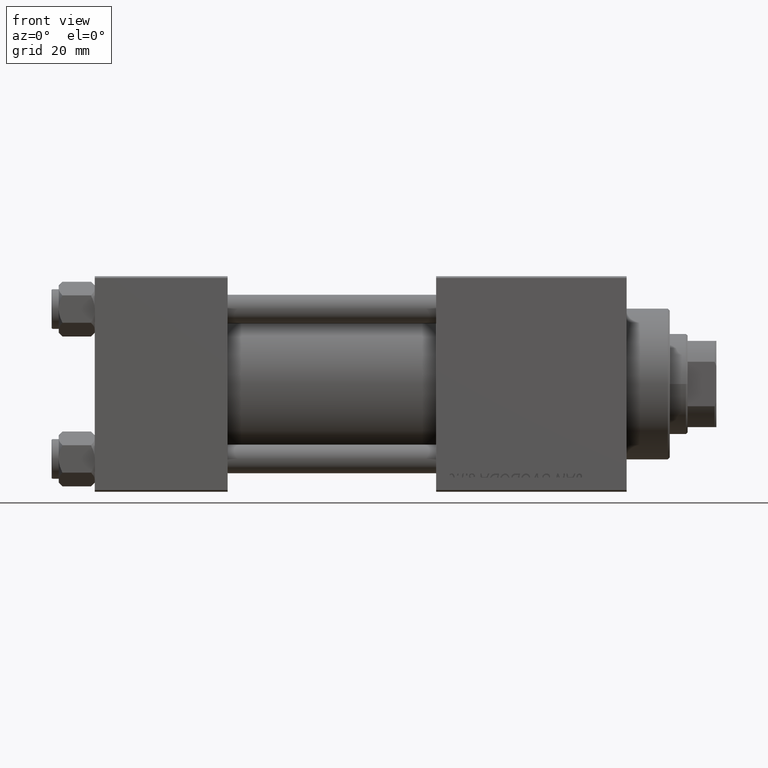
[diagram: clean part render]
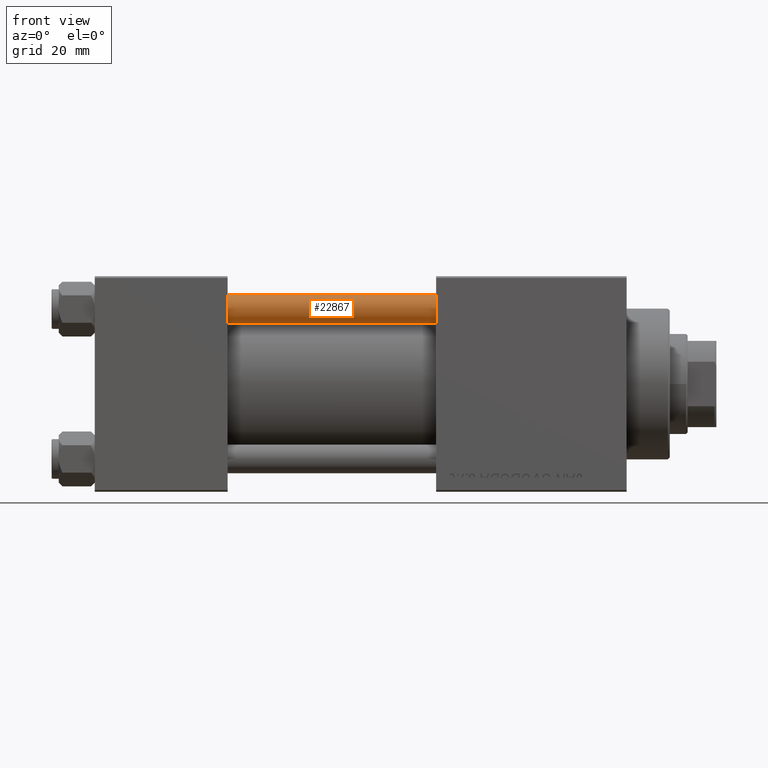
[diagram: same view with one face highlighted and labeled with its STEP entity id]
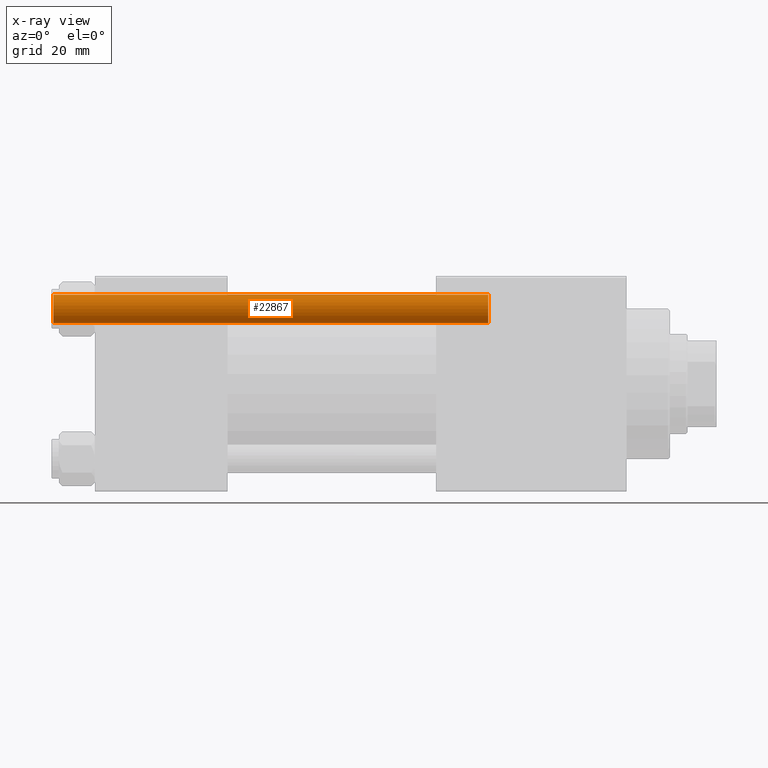
[diagram: x-ray of the same camera — body ghosted, the highlighted face saturated]
A machine part, front view. The second image highlights one B-rep face of the part: STEP entity #22867.
The next image is the same camera in x-ray: the body ghosted, the highlighted face saturated — about 0% of this face is hidden behind the body in this view.
In plain terms, the highlighted cylindrical surface (edge-blend (fillet) strip) has radius 4 mm, axis along (1, 0, -0).
Its self-contained STEP definition (entity closure, byte-faithful):
#1733 = CARTESIAN_POINT ( 'NONE',  ( 0.000000000000000000, 0.000000000000000000, 121.5000000000000426 ) ) ;
#2973 = CYLINDRICAL_SURFACE ( 'NONE', #47622, 4.000000000000000000 ) ;
#3284 = LINE ( 'NONE', #34675, #48078 ) ;
#3717 = CIRCLE ( 'NONE', #45297, 4.000000000000000000 ) ;
#7549 = FACE_OUTER_BOUND ( 'NONE', #42691, .T. ) ;
#9803 = DIRECTION ( 'NONE',  ( 1.000000000000000000, 0.000000000000000000, 0.000000000000000000 ) ) ;
#11381 = CIRCLE ( 'NONE', #40738, 4.000000000000000000 ) ;
#11616 = CARTESIAN_POINT ( 'NONE',  ( 0.000000000000000000, 0.000000000000000000, 122.0000000000000000 ) ) ;
#12462 = DIRECTION ( 'NONE',  ( -0.000000000000000000, -0.000000000000000000, -1.000000000000000000 ) ) ;
#13635 = CARTESIAN_POINT ( 'NONE',  ( 0.000000000000000000, 0.000000000000000000, 0.5000000000000559552 ) ) ;
#14953 = DIRECTION ( 'NONE',  ( -1.000000000000000000, 0.000000000000000000, 0.000000000000000000 ) ) ;
#16543 = DIRECTION ( 'NONE',  ( 0.000000000000000000, 0.000000000000000000, -1.000000000000000000 ) ) ;
#16808 = DIRECTION ( 'NONE',  ( 1.000000000000000000, 0.000000000000000000, 0.000000000000000000 ) ) ;
#20709 = CARTESIAN_POINT ( 'NONE',  ( -4.000000000000000000, 0.000000000000000000, 0.5000000000000559552 ) ) ;
#22236 = EDGE_CURVE ( 'NONE', #40920, #24268, #47433, .T. ) ;
#22867 = ADVANCED_FACE ( 'NONE', ( #7549 ), #2973, .T. ) ;
#23429 = CARTESIAN_POINT ( 'NONE',  ( 4.000000000000000000, 4.898587196589411843E-16, 121.5000000000000426 ) ) ;
#23718 = CARTESIAN_POINT ( 'NONE',  ( -4.000000000000000000, 0.000000000000000000, 122.0000000000000000 ) ) ;
#24268 = VERTEX_POINT ( 'NONE', #20709 ) ;
#24550 = VERTEX_POINT ( 'NONE', #45309 ) ;
#25403 = DIRECTION ( 'NONE',  ( -0.000000000000000000, -0.000000000000000000, 1.000000000000000000 ) ) ;
#26473 = EDGE_CURVE ( 'NONE', #40920, #37519, #3717, .T. ) ;
#27217 = DIRECTION ( 'NONE',  ( -0.000000000000000000, -0.000000000000000000, -1.000000000000000000 ) ) ;
#27448 = ORIENTED_EDGE ( 'NONE', *, *, #39358, .T. ) ;
#29759 = ORIENTED_EDGE ( 'NONE', *, *, #22236, .F. ) ;
#32431 = CARTESIAN_POINT ( 'NONE',  ( -4.000000000000000000, 0.000000000000000000, 121.5000000000000426 ) ) ;
#32955 = ORIENTED_EDGE ( 'NONE', *, *, #40346, .T. ) ;
#34223 = ORIENTED_EDGE ( 'NONE', *, *, #26473, .T. ) ;
#34675 = CARTESIAN_POINT ( 'NONE',  ( 4.000000000000000000, 4.898587196589411843E-16, 122.0000000000000000 ) ) ;
#37519 = VERTEX_POINT ( 'NONE', #23429 ) ;
#38623 = VECTOR ( 'NONE', #12462, 1000.000000000000000 ) ;
#39358 = EDGE_CURVE ( 'NONE', #24550, #24268, #11381, .T. ) ;
#40346 = EDGE_CURVE ( 'NONE', #37519, #24550, #3284, .T. ) ;
#40738 = AXIS2_PLACEMENT_3D ( 'NONE', #13635, #25403, #9803 ) ;
#40920 = VERTEX_POINT ( 'NONE', #32431 ) ;
#42691 = EDGE_LOOP ( 'NONE', ( #34223, #32955, #27448, #29759 ) ) ;
#45297 = AXIS2_PLACEMENT_3D ( 'NONE', #1733, #16543, #16808 ) ;
#45309 = CARTESIAN_POINT ( 'NONE',  ( 4.000000000000000000, 4.898587196589411843E-16, 0.5000000000000559552 ) ) ;
#47148 = DIRECTION ( 'NONE',  ( -0.000000000000000000, -0.000000000000000000, -1.000000000000000000 ) ) ;
#47433 = LINE ( 'NONE', #23718, #38623 ) ;
#47622 = AXIS2_PLACEMENT_3D ( 'NONE', #11616, #27217, #14953 ) ;
#48078 = VECTOR ( 'NONE', #47148, 1000.000000000000000 ) ;